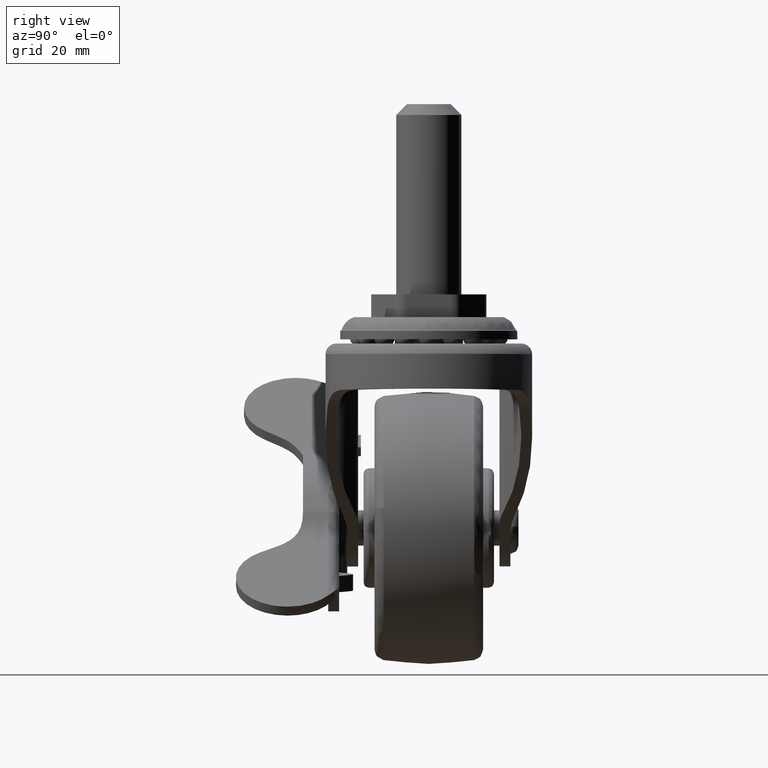
[diagram: clean part render]
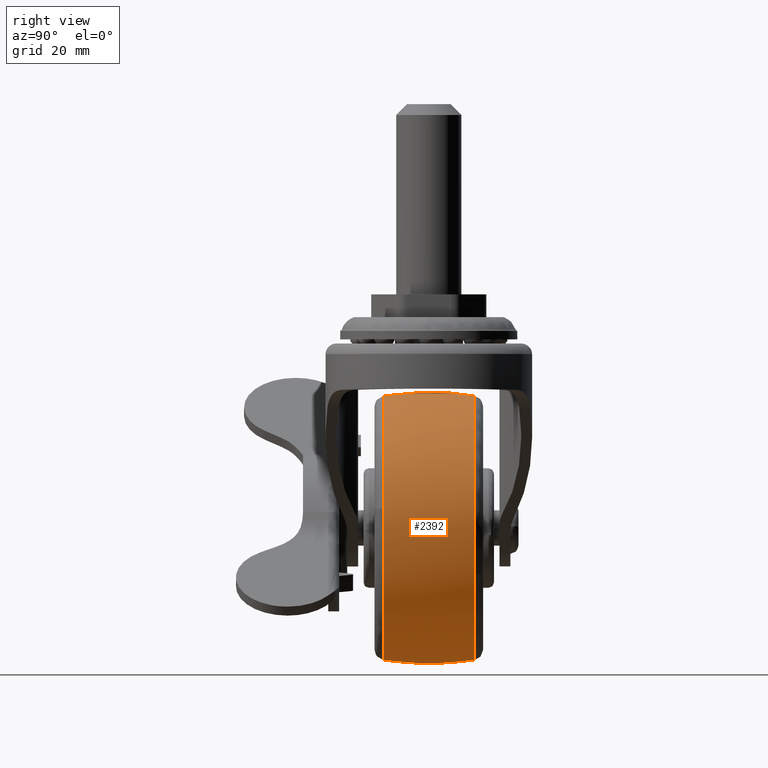
[diagram: same view with one face highlighted and labeled with its STEP entity id]
A machine part, right view. The second image highlights one B-rep face of the part: STEP entity #2392.
In plain terms, the highlighted face is a freeform B-spline surface patch.
Its self-contained STEP definition (entity closure, byte-faithful):
#1852=CARTESIAN_POINT('',(6.400181392199420,-8.333334967038301,-23.442696500243450));
#1853=VERTEX_POINT('',#1852);
#1866=CARTESIAN_POINT('',(24.024899403702388,-8.333334031540151,3.650555248361826));
#1867=VERTEX_POINT('',#1866);
#1868=CARTESIAN_POINT('',(6.400181392199420,-8.333334967038301,-23.442696500243450));
#1869=CARTESIAN_POINT('',(7.821509780526367,-8.333334924784150,-23.054804956726709));
#1870=CARTESIAN_POINT('',(10.030160741283961,-8.333334855015606,-22.229596585885531));
#1871=CARTESIAN_POINT('',(13.020516807423460,-8.333334750844623,-20.586593739579641));
#1872=CARTESIAN_POINT('',(15.608364013442840,-8.333334652708389,-18.732285999341890));
#1873=CARTESIAN_POINT('',(17.976028452877880,-8.333334552371746,-16.464488198249331));
#1874=CARTESIAN_POINT('',(19.781576674915069,-8.333334465748662,-14.187813029440539));
#1875=CARTESIAN_POINT('',(21.294303931687171,-8.333334384644704,-11.818519999660730));
#1876=CARTESIAN_POINT('',(22.571015371816369,-8.333334304873363,-9.205900867957745));
#1877=CARTESIAN_POINT('',(23.624530706484862,-8.333334219780321,-6.006733472976504));
#1878=CARTESIAN_POINT('',(24.175027200309579,-8.333334150853821,-3.010529031229886));
#1879=CARTESIAN_POINT('',(24.369689968355800,-8.333334085704079,0.256854625328779));
#1880=CARTESIAN_POINT('',(24.218641256053811,-8.333334050295528,2.376053070080045));
#1881=CARTESIAN_POINT('',(24.024899403702388,-8.333334031540151,3.650555248361826));
#1882=B_SPLINE_CURVE_WITH_KNOTS('',3,(#1868,#1869,#1870,#1871,#1872,#1873,#1874,#1875,#1876,#1877,#1878,#1879,#1880,#1881),.UNSPECIFIED.,.F.,.U.,(4,1,1,1,1,1,1,1,1,1,1,4),(0.000000045660059,4.419890979546420,7.044227508331968,10.221050087546921,13.950365000017319,16.850924597829309,18.922725528128399,22.375796761518629,25.552605155840890,29.005665840023180,31.491864816990869,35.359286150687723),.UNSPECIFIED.);
#1883=EDGE_CURVE('',#1853,#1867,#1882,.T.);
#2000=CARTESIAN_POINT('',(0.0,-8.333332842528836,24.300664942124541));
#2001=VERTEX_POINT('',#2000);
#2002=CARTESIAN_POINT('',(24.024899403702388,-8.333334031540151,3.650555248361826));
#2003=CARTESIAN_POINT('',(23.809060391092359,-8.333333949691109,5.072065695209328));
#2004=CARTESIAN_POINT('',(23.327220612359159,-8.333333836155571,7.043889684265223));
#2005=CARTESIAN_POINT('',(22.157700301741151,-8.333333659580212,10.110554754065840));
#2006=CARTESIAN_POINT('',(20.789319086423490,-8.333333507518255,12.751488618820440));
#2007=CARTESIAN_POINT('',(18.839065829739091,-8.333333351897762,15.454215832786030));
#2008=CARTESIAN_POINT('',(16.716261709208080,-8.333333221385969,17.720881801684190));
#2009=CARTESIAN_POINT('',(14.574354432217669,-8.333333118320045,19.510869792106568));
#2010=CARTESIAN_POINT('',(12.094728002148109,-8.333333024283830,21.144042709089149));
#2011=CARTESIAN_POINT('',(9.153301824753514,-8.333332939698490,22.613071967892029));
#2012=CARTESIAN_POINT('',(5.032125851663637,-8.333332863520530,23.936095075954569));
#2013=CARTESIAN_POINT('',(1.842200915163128,-8.333332842506467,24.301051780263400));
#2014=CARTESIAN_POINT('',(0.0,-8.333332842528836,24.300664942124541));
#2015=B_SPLINE_CURVE_WITH_KNOTS('',3,(#2002,#2003,#2004,#2005,#2006,#2007,#2008,#2009,#2010,#2011,#2012,#2013,#2014),.UNSPECIFIED.,.F.,.U.,(4,1,1,1,1,1,1,1,1,1,4),(0.000000043551417,4.313374271360377,6.065674379560896,9.839894750043140,13.209722224116810,16.040372469397749,19.140582453748252,21.566872029417990,24.936704034319899,28.980501386704510,34.507012590495890),.UNSPECIFIED.);
#2016=EDGE_CURVE('',#1867,#2001,#2015,.T.);
#2018=CARTESIAN_POINT('',(-24.138134129548948,-8.333342891131142,2.805835850909152));
#2019=VERTEX_POINT('',#2018);
#2037=CARTESIAN_POINT('',(0.0,-8.333334859047270,-24.300664601270750));
#2038=VERTEX_POINT('',#2037);
#2039=CARTESIAN_POINT('',(-24.138134129548948,-8.333342891131142,2.805835850909152));
#2040=CARTESIAN_POINT('',(-24.323220918830899,-8.333342655566515,1.215639797687551));
#2041=CARTESIAN_POINT('',(-24.368128337187500,-8.333342219126473,-1.465204773169144));
#2042=CARTESIAN_POINT('',(-23.840453610730268,-8.333341555757691,-5.009291546023100));
#2043=CARTESIAN_POINT('',(-23.085738914241059,-8.333340993457874,-7.739643545742009));
#2044=CARTESIAN_POINT('',(-22.039497409533361,-8.333340404526073,-10.371539744518071));
#2045=CARTESIAN_POINT('',(-20.560702965445891,-8.333339736278388,-13.098183885460800));
#2046=CARTESIAN_POINT('',(-18.369967128141901,-8.333338922783870,-16.069722951442259));
#2047=CARTESIAN_POINT('',(-15.611697964267290,-8.333338071206606,-18.766312960048499));
#2048=CARTESIAN_POINT('',(-12.627513123862240,-8.333337287815111,-20.849141975226381));
#2049=CARTESIAN_POINT('',(-9.346160138350367,-8.333336526466177,-22.533966530576560));
#2050=CARTESIAN_POINT('',(-6.144339746628766,-8.333335878246770,-23.605079979608249));
#2051=CARTESIAN_POINT('',(-2.828257999764845,-8.333335293603325,-24.189752372129021));
#2052=CARTESIAN_POINT('',(-0.960542562834999,-8.333335000403011,-24.300691231924219));
#2053=CARTESIAN_POINT('',(0.0,-8.333334859047270,-24.300664601270750));
#2054=B_SPLINE_CURVE_WITH_KNOTS('',3,(#2039,#2040,#2041,#2042,#2043,#2044,#2045,#2046,#2047,#2048,#2049,#2050,#2051,#2052,#2053),.UNSPECIFIED.,.F.,.U.,(4,1,1,1,1,1,1,1,1,1,1,1,4),(0.000000051934116,4.802740348355151,8.004601046072395,10.726171201689450,13.287657914260350,16.489494092604829,20.011552190244959,24.333994175090790,28.016111799854599,30.897774583883130,35.380373075780881,38.101947004218609,40.983576089057692),.UNSPECIFIED.);
#2055=EDGE_CURVE('',#2019,#2038,#2054,.T.);
#2057=CARTESIAN_POINT('',(0.0,-8.333334859047270,-24.300664601270750));
#2058=CARTESIAN_POINT('',(2.158920030377054,-8.333334858982896,-24.301175945659651));
#2059=CARTESIAN_POINT('',(4.317592788664795,-8.333334895430806,-24.011604508458689));
#2060=CARTESIAN_POINT('',(6.400181392199420,-8.333334967038301,-23.442696500243450));
#2061=B_SPLINE_CURVE_WITH_KNOTS('',3,(#2057,#2058,#2059,#2060),.UNSPECIFIED.,.F.,.U.,(4,4),(6.139782E-010,6.476602507861252),.UNSPECIFIED.);
#2062=EDGE_CURVE('',#2038,#1853,#2061,.T.);
#2097=CARTESIAN_POINT('',(22.709083182857029,8.333328525650611,-8.649852755335209));
#2098=VERTEX_POINT('',#2097);
#2099=CARTESIAN_POINT('',(0.0,8.333318185157596,24.300668287269261));
#2100=VERTEX_POINT('',#2099);
#2101=CARTESIAN_POINT('',(22.709083182857029,8.333328525650611,-8.649852755335209));
#2102=CARTESIAN_POINT('',(23.341354307721669,8.333328001496831,-6.990910045686510));
#2103=CARTESIAN_POINT('',(24.069048255274730,8.333327117015374,-4.189383515506386));
#2104=CARTESIAN_POINT('',(24.384247793678441,8.333325824400486,-0.090384104454295));
#2105=CARTESIAN_POINT('',(24.158685030915279,8.333324762939398,3.278674690184804));
#2106=CARTESIAN_POINT('',(23.491514780102850,8.333323761301598,6.460734733057349));
#2107=CARTESIAN_POINT('',(22.493893610621932,8.333322849328940,9.360414145357854));
#2108=CARTESIAN_POINT('',(21.332154849419290,8.333322105205687,11.728606594669991));
#2109=CARTESIAN_POINT('',(19.872275574954340,8.333321371049381,14.067070057585889));
#2110=CARTESIAN_POINT('',(18.170914718134931,8.333320688986484,16.241786692941549));
#2111=CARTESIAN_POINT('',(16.241897171201948,8.333320097778127,18.129700560268901));
#2112=CARTESIAN_POINT('',(14.140140349303170,8.333319570193380,19.816851464235430));
#2113=CARTESIAN_POINT('',(11.976583992357099,8.333319133193339,21.217004317259391));
#2114=CARTESIAN_POINT('',(9.160318763979570,8.333318710380450,22.576281533481239));
#2115=CARTESIAN_POINT('',(6.194787484306429,8.333318401367997,23.575456928580529));
#2116=CARTESIAN_POINT('',(3.060870292752318,8.333318218756119,24.174676744252629));
#2117=CARTESIAN_POINT('',(0.979481532447608,8.333318183194608,24.300689576618190));
#2118=CARTESIAN_POINT('',(0.0,8.333318185157596,24.300668287269261));
#2119=B_SPLINE_CURVE_WITH_KNOTS('',3,(#2101,#2102,#2103,#2104,#2105,#2106,#2107,#2108,#2109,#2110,#2111,#2112,#2113,#2114,#2115,#2116,#2117,#2118),.UNSPECIFIED.,.F.,.U.,(4,1,1,1,1,1,1,1,1,1,1,1,1,1,1,4),(0.000000026332629,5.325946529612743,8.631714135899557,12.304787221818010,15.426902899742620,18.365371654044200,21.487491810979058,23.324006102862640,26.629724007826400,29.751863714621969,31.404746631460881,34.710512294848670,37.465324579130517,40.771101452833847,44.076846330344559,47.015296396435417),.UNSPECIFIED.);
#2120=EDGE_CURVE('',#2098,#2100,#2119,.T.);
#2231=CARTESIAN_POINT('',(0.0,8.333333321451740,-24.300666596374899));
#2232=VERTEX_POINT('',#2231);
#2233=CARTESIAN_POINT('',(0.0,8.333333321451740,-24.300666596374899));
#2234=CARTESIAN_POINT('',(1.107418192771969,8.333333321459515,-24.300691941788930));
#2235=CARTESIAN_POINT('',(3.513205175894050,8.333333270993220,-24.135998230538600));
#2236=CARTESIAN_POINT('',(6.730666656888241,8.333333053769822,-23.427102462334350));
#2237=CARTESIAN_POINT('',(10.070206882288590,8.333332678822819,-22.203484953338169));
#2238=CARTESIAN_POINT('',(13.079264353604410,8.333332186673136,-20.597383902055959));
#2239=CARTESIAN_POINT('',(16.197613894860940,8.333331466495507,-18.247126107801090));
#2240=CARTESIAN_POINT('',(18.757111513649161,8.333330656629771,-15.604178003828601));
#2241=CARTESIAN_POINT('',(21.050243596893971,8.333329659307992,-12.349476122490501));
#2242=CARTESIAN_POINT('',(22.192690622833059,8.333328941199298,-10.005971760197889));
#2243=CARTESIAN_POINT('',(22.709083182857029,8.333328525650611,-8.649852755335209));
#2244=B_SPLINE_CURVE_WITH_KNOTS('',3,(#2233,#2234,#2235,#2236,#2237,#2238,#2239,#2240,#2241,#2242,#2243),.UNSPECIFIED.,.F.,.U.,(4,1,1,1,1,1,1,1,4),(0.000000030110957,3.322262257217584,7.217348726665630,9.852265091310624,13.976481041423520,17.413266057827450,21.537483935878150,24.974326057709050,29.327639964899959),.UNSPECIFIED.);
#2245=EDGE_CURVE('',#2232,#2098,#2244,.T.);
#2247=CARTESIAN_POINT('',(-24.138137454405449,8.333328319628095,2.805836093557987));
#2248=VERTEX_POINT('',#2247);
#2249=CARTESIAN_POINT('',(-24.138137454405449,8.333328319628095,2.805836093557987));
#2250=CARTESIAN_POINT('',(-24.261398375558180,8.333328417435185,1.745708718638591));
#2251=CARTESIAN_POINT('',(-24.370607150339129,8.333328632806380,-0.444242740648441));
#2252=CARTESIAN_POINT('',(-24.079292591976280,8.333329010553905,-3.855297569131316));
#2253=CARTESIAN_POINT('',(-23.310159586039820,8.333329418882620,-7.138007022563899));
#2254=CARTESIAN_POINT('',(-22.270050157981061,8.333329791401846,-9.831463873346065));
#2255=CARTESIAN_POINT('',(-21.083466739483651,8.333330140185687,-12.163855465654320));
#2256=CARTESIAN_POINT('',(-19.383160674707248,8.333330569402078,-14.820322056736270));
#2257=CARTESIAN_POINT('',(-16.896834952392091,8.333331086519326,-17.630954011909211));
#2258=CARTESIAN_POINT('',(-14.139753364291311,8.333331566414385,-19.838798528465791));
#2259=CARTESIAN_POINT('',(-11.549222965448349,8.333331968525105,-21.439151419628718));
#2260=CARTESIAN_POINT('',(-8.648002942751628,8.333332375494864,-22.810047568083871));
#2261=CARTESIAN_POINT('',(-4.695934146849696,8.333332858999448,-23.988839695557630));
#2262=CARTESIAN_POINT('',(-1.654295280036253,8.333333169868467,-24.300910845494791));
#2263=CARTESIAN_POINT('',(0.0,8.333333321451740,-24.300666596374899));
#2264=B_SPLINE_CURVE_WITH_KNOTS('',3,(#2249,#2250,#2251,#2252,#2253,#2254,#2255,#2256,#2257,#2258,#2259,#2260,#2261,#2262,#2263),.UNSPECIFIED.,.F.,.U.,(4,1,1,1,1,1,1,1,1,1,1,1,4),(0.000000051907953,3.201811663419839,6.563770939669695,10.245895284463909,13.287659244045910,15.208764798318800,18.090411470661639,22.733060081291899,26.415187236164119,28.656487102963510,31.858334960336059,36.020748843754227,40.983580190623343),.UNSPECIFIED.);
#2265=EDGE_CURVE('',#2248,#2232,#2264,.T.);
#2313=CARTESIAN_POINT('',(-23.989886262662093,-9.172674098402839,2.788624460939059));
#2314=CARTESIAN_POINT('',(-24.832791040827100,-4.625588889341366,2.886605120659473));
#2315=CARTESIAN_POINT('',(-24.832791040827100,0.0,2.886605120659473));
#2316=CARTESIAN_POINT('',(-24.832791040827097,4.625582629713152,2.886605120659473));
#2317=CARTESIAN_POINT('',(-23.989888524641639,9.172661896050858,2.788624723875340));
#2318=CARTESIAN_POINT('',(-24.151419612097563,-9.172674098402840,1.398990706066609));
#2319=CARTESIAN_POINT('',(-25.0,-4.625588889341365,1.448145418091538));
#2320=CARTESIAN_POINT('',(-25.0,0.0,1.448145418091539));
#2321=CARTESIAN_POINT('',(-25.0,4.625582629713152,1.448145418091538));
#2322=CARTESIAN_POINT('',(-24.151421889307908,9.172661896050860,1.398990837975877));
#2323=CARTESIAN_POINT('',(-24.151419612097570,-9.172674098402840,0.0));
#2324=CARTESIAN_POINT('',(-25.000000000000004,-4.625588889341366,0.0));
#2325=CARTESIAN_POINT('',(-25.0,0.0,0.0));
#2326=CARTESIAN_POINT('',(-25.000000000000004,4.625582629713151,0.0));
#2327=CARTESIAN_POINT('',(-24.151421889307908,9.172661896050862,0.0));
#2328=CARTESIAN_POINT('',(-24.151419612097566,-9.172674098402840,-24.151419612097566));
#2329=CARTESIAN_POINT('',(-25.0,-4.625588889341366,-25.0));
#2330=CARTESIAN_POINT('',(-25.0,0.0,-25.0));
#2331=CARTESIAN_POINT('',(-24.999999999999996,4.625582629713152,-24.999999999999996));
#2332=CARTESIAN_POINT('',(-24.151421889307915,9.172661896050862,-24.151421889307915));
#2333=CARTESIAN_POINT('',(0.0,-9.172674098402840,-24.151419612097570));
#2334=CARTESIAN_POINT('',(0.0,-4.625588889341366,-25.000000000000004));
#2335=CARTESIAN_POINT('',(0.0,0.0,-25.0));
#2336=CARTESIAN_POINT('',(0.0,4.625582629713151,-25.000000000000004));
#2337=CARTESIAN_POINT('',(0.0,9.172661896050862,-24.151421889307908));
#2338=CARTESIAN_POINT('',(24.151419612097566,-9.172674098402840,-24.151419612097566));
#2339=CARTESIAN_POINT('',(25.0,-4.625588889341366,-25.0));
#2340=CARTESIAN_POINT('',(25.0,0.0,-25.0));
#2341=CARTESIAN_POINT('',(24.999999999999996,4.625582629713152,-24.999999999999996));
#2342=CARTESIAN_POINT('',(24.151421889307915,9.172661896050862,-24.151421889307915));
#2343=CARTESIAN_POINT('',(24.151419612097570,-9.172674098402840,0.0));
#2344=CARTESIAN_POINT('',(25.000000000000004,-4.625588889341366,0.0));
#2345=CARTESIAN_POINT('',(25.0,0.0,0.0));
#2346=CARTESIAN_POINT('',(25.000000000000004,4.625582629713151,0.0));
#2347=CARTESIAN_POINT('',(24.151421889307908,9.172661896050862,0.0));
#2348=CARTESIAN_POINT('',(24.151419612097566,-9.172674098402840,24.151419612097566));
#2349=CARTESIAN_POINT('',(25.0,-4.625588889341366,25.0));
#2350=CARTESIAN_POINT('',(25.0,0.0,25.0));
#2351=CARTESIAN_POINT('',(24.999999999999996,4.625582629713152,24.999999999999996));
#2352=CARTESIAN_POINT('',(24.151421889307915,9.172661896050862,24.151421889307915));
#2353=CARTESIAN_POINT('',(0.0,-9.172674098402840,24.151419612097570));
#2354=CARTESIAN_POINT('',(0.0,-4.625588889341366,25.000000000000004));
#2355=CARTESIAN_POINT('',(0.0,0.0,25.0));
#2356=CARTESIAN_POINT('',(0.0,4.625582629713151,25.000000000000004));
#2357=CARTESIAN_POINT('',(0.0,9.172661896050862,24.151421889307908));
#2365=(BOUNDED_SURFACE()B_SPLINE_SURFACE(2,2,((#2313,#2318,#2323,#2328,#2333,#2338,#2343,#2348,#2353),(#2314,#2319,#2324,#2329,#2334,#2339,#2344,#2349,#2354),(#2315,#2320,#2325,#2330,#2335,#2340,#2345,#2350,#2355),(#2316,#2321,#2326,#2331,#2336,#2341,#2346,#2351,#2356),(#2317,#2322,#2327,#2332,#2337,#2342,#2347,#2352,#2357)),.UNSPECIFIED.,.F.,.F.,.U.)B_SPLINE_SURFACE_WITH_KNOTS((3,2,3),(3,2,2,2,3),(0.0,9.400050528054186,18.800088643087498),(0.0,3.313707807691297,44.735064045000797,86.156420282310307,127.577776519619800),.UNSPECIFIED.)GEOMETRIC_REPRESENTATION_ITEM()RATIONAL_B_SPLINE_SURFACE(((0.918952094748725,0.937854241504230,0.960356796271374,0.679074803002076,0.960356796271374,0.679074803002076,0.960356796271374,0.679074803002076,0.960356796271374),(0.933740149649275,0.952946475464336,0.975811148145135,0.690002680010856,0.975811148145135,0.690002680010856,0.975811148145135,0.690002680010856,0.975811148145135),(0.956886126402807,0.976568547383107,1.0,0.707106781186548,1.0,0.707106781186548,1.0,0.707106781186548,1.0),(0.933740180214163,0.952946506657921,0.975811180087168,0.690002702597284,0.975811180087168,0.690002702597284,0.975811180087168,0.690002702597284,0.975811180087168),(0.918952133804793,0.937854281363651,0.960356837087168,0.679074831863201,0.960356837087168,0.679074831863201,0.960356837087168,0.679074831863201,0.960356837087168)))REPRESENTATION_ITEM('')SURFACE());
#2366=ORIENTED_EDGE('',*,*,#2055,.F.);
#2367=CARTESIAN_POINT('',(-24.138134129548948,-8.333342891131142,2.805835850909152));
#2368=CARTESIAN_POINT('',(-24.441374513370590,-6.527500092924708,2.841085011767607));
#2369=CARTESIAN_POINT('',(-24.801700932539770,-3.316189762287594,2.882969938050438));
#2370=CARTESIAN_POINT('',(-24.888823109322860,2.269622185205808,2.893097119412317));
#2371=CARTESIAN_POINT('',(-24.528094824881709,6.011535002447157,2.851165419620489));
#2372=CARTESIAN_POINT('',(-24.138137454405449,8.333328319628095,2.805836093557987));
#2373=B_SPLINE_CURVE_WITH_KNOTS('',3,(#2367,#2368,#2369,#2370,#2371,#2372),.UNSPECIFIED.,.F.,.U.,(4,1,1,4),(1.072269E-009,5.494398208933509,9.680599803979385,16.744831631868720),.UNSPECIFIED.);
#2374=EDGE_CURVE('',#2019,#2248,#2373,.T.);
#2375=ORIENTED_EDGE('',*,*,#2374,.T.);
#2376=ORIENTED_EDGE('',*,*,#2265,.T.);
#2377=ORIENTED_EDGE('',*,*,#2245,.T.);
#2378=ORIENTED_EDGE('',*,*,#2120,.T.);
#2379=CARTESIAN_POINT('',(0.0,-8.333332842528836,24.300664942124541));
#2380=CARTESIAN_POINT('',(0.0,-5.323624595764701,24.809766737922100));
#2381=CARTESIAN_POINT('',(0.0,0.265298477486547,25.233923621261489));
#2382=CARTESIAN_POINT('',(0.0,5.839547509508100,24.722348935545948));
#2383=CARTESIAN_POINT('',(0.0,8.333318185157596,24.300668287269261));
#2384=B_SPLINE_CURVE_WITH_KNOTS('',3,(#2379,#2380,#2381,#2382,#2383),.UNSPECIFIED.,.F.,.U.,(4,1,4),(1.072603E-009,9.157312783094891,16.744811068286399),.UNSPECIFIED.);
#2385=EDGE_CURVE('',#2001,#2100,#2384,.T.);
#2386=ORIENTED_EDGE('',*,*,#2385,.F.);
#2387=ORIENTED_EDGE('',*,*,#2016,.F.);
#2388=ORIENTED_EDGE('',*,*,#1883,.F.);
#2389=ORIENTED_EDGE('',*,*,#2062,.F.);
#2390=EDGE_LOOP('',(#2366,#2375,#2376,#2377,#2378,#2386,#2387,#2388,#2389));
#2391=FACE_OUTER_BOUND('',#2390,.T.);
#2392=ADVANCED_FACE('',(#2391),#2365,.T.);